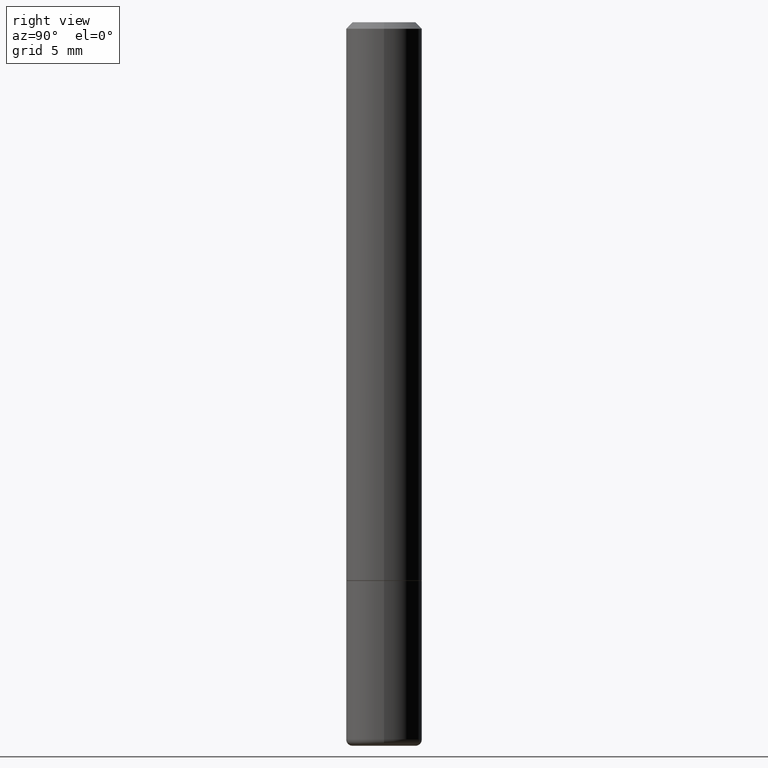
[diagram: clean part render]
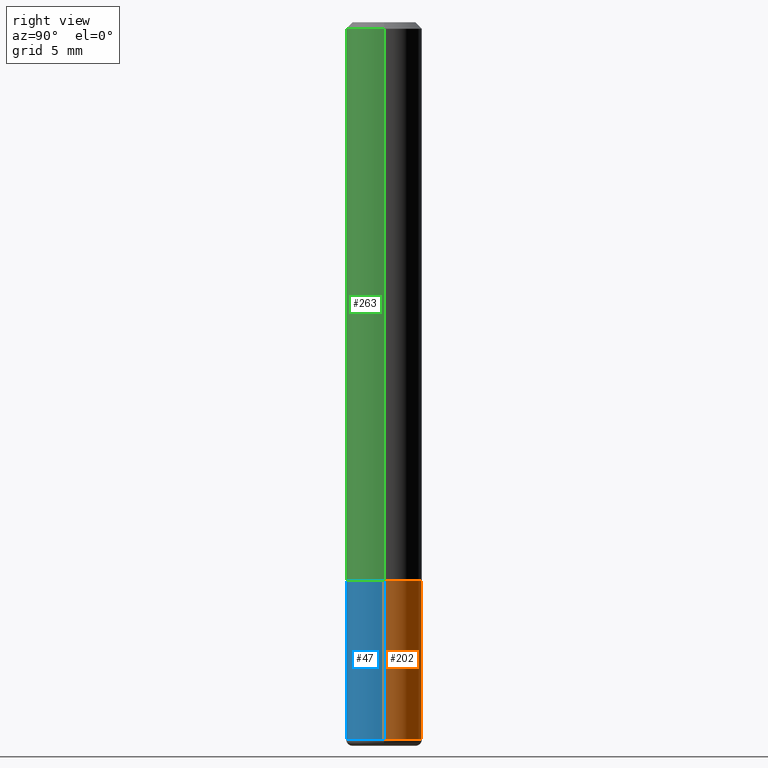
[diagram: same view with three faces highlighted in distinct colors, each labeled with its STEP entity id]
A machine part, right view with three faces highlighted in distinct colors.
Their STEP definitions:

[orange] entity #202 — the highlighted cylindrical surface (partial cylindrical patch) has radius 2.9997 mm, axis along (-0, 0, 1).
#1 = CARTESIAN_POINT ( 'NONE',  ( -0.1180999999999999411, -6.927300119190015324E-15, -2.224399999999999711 ) ) ;
#7 = DIRECTION ( 'NONE',  ( -2.445468806185136597E-29, 3.491481338843145583E-15, 1.000000000000000000 ) ) ;
#8 = AXIS2_PLACEMENT_3D ( 'NONE', #53, #255, #158 ) ;
#16 = ORIENTED_EDGE ( 'NONE', *, *, #373, .F. ) ;
#17 = VERTEX_POINT ( 'NONE', #350 ) ;
#27 = EDGE_CURVE ( 'NONE', #378, #153, #32, .T. ) ;
#32 = CIRCLE ( 'NONE', #8, 0.1180999999999999966 ) ;
#33 = CIRCLE ( 'NONE', #303, 0.1180999999999999966 ) ;
#53 = CARTESIAN_POINT ( 'NONE',  ( 5.439700812478218014E-29, -7.766451090122692732E-15, -2.224399999999999711 ) ) ;
#88 = ORIENTED_EDGE ( 'NONE', *, *, #27, .T. ) ;
#109 = FACE_OUTER_BOUND ( 'NONE', #134, .T. ) ;
#134 = EDGE_LOOP ( 'NONE', ( #88, #175, #217, #16 ) ) ;
#141 = VECTOR ( 'NONE', #310, 39.37007874015748143 ) ;
#143 = VECTOR ( 'NONE', #286, 39.37007874015748143 ) ;
#153 = VERTEX_POINT ( 'NONE', #1 ) ;
#158 = DIRECTION ( 'NONE',  ( 1.000000000000000000, -6.982962677686265133E-15, 0.000000000000000000 ) ) ;
#173 = CARTESIAN_POINT ( 'NONE',  ( 0.000000000000000000, 0.000000000000000000, 0.000000000000000000 ) ) ;
#175 = ORIENTED_EDGE ( 'NONE', *, *, #354, .T. ) ;
#188 = CARTESIAN_POINT ( 'NONE',  ( -0.1180999999999999966, 8.391509709326782957E-16, -5.809262341591043784E-30 ) ) ;
#195 = EDGE_CURVE ( 'NONE', #275, #17, #33, .T. ) ;
#202 = ADVANCED_FACE ( 'NONE', ( #109 ), #235, .T. ) ;
#217 = ORIENTED_EDGE ( 'NONE', *, *, #195, .F. ) ;
#235 = CYLINDRICAL_SURFACE ( 'NONE', #240, 0.1180999999999999966 ) ;
#240 = AXIS2_PLACEMENT_3D ( 'NONE', #173, #270, #243 ) ;
#243 = DIRECTION ( 'NONE',  ( 1.000000000000000000, -6.982962677686266711E-15, 4.876176775795936353E-29 ) ) ;
#251 = CARTESIAN_POINT ( 'NONE',  ( 0.1180999999999999411, -8.591138982357440995E-15, -2.224399999999999711 ) ) ;
#254 = CARTESIAN_POINT ( 'NONE',  ( 0.1180999999999999966, -8.246878922347480654E-16, 5.758764772215000440E-30 ) ) ;
#255 = DIRECTION ( 'NONE',  ( -2.445468806185136597E-29, 3.491481338843145583E-15, 1.000000000000000000 ) ) ;
#268 = DIRECTION ( 'NONE',  ( 1.000000000000000000, -6.982962677686265133E-15, 0.000000000000000000 ) ) ;
#270 = DIRECTION ( 'NONE',  ( -2.445468806185136597E-29, 3.491481338843145583E-15, 1.000000000000000000 ) ) ;
#275 = VERTEX_POINT ( 'NONE', #408 ) ;
#280 = LINE ( 'NONE', #188, #141 ) ;
#286 = DIRECTION ( 'NONE',  ( -2.445468806185136877E-29, 3.491481338843145188E-15, 1.000000000000000000 ) ) ;
#303 = AXIS2_PLACEMENT_3D ( 'NONE', #362, #7, #268 ) ;
#310 = DIRECTION ( 'NONE',  ( -2.445468806185136877E-29, 3.491481338843145188E-15, 1.000000000000000000 ) ) ;
#350 = CARTESIAN_POINT ( 'NONE',  ( -0.1180999999999999966, -6.068221135767658314E-15, -1.732299999999999951 ) ) ;
#354 = EDGE_CURVE ( 'NONE', #153, #17, #280, .T. ) ;
#362 = CARTESIAN_POINT ( 'NONE',  ( 4.236285612954512392E-29, -6.048293123277981078E-15, -1.732299999999999951 ) ) ;
#373 = EDGE_CURVE ( 'NONE', #378, #275, #379, .T. ) ;
#378 = VERTEX_POINT ( 'NONE', #251 ) ;
#379 = LINE ( 'NONE', #254, #143 ) ;
#408 = CARTESIAN_POINT ( 'NONE',  ( 0.1180999999999999966, -6.872981015512729341E-15, -1.732299999999999951 ) ) ;

[blue] entity #47 — the highlighted cylindrical surface (partial cylindrical patch) has radius 2.9997 mm, axis along (-0, 0, 1).
#1 = CARTESIAN_POINT ( 'NONE',  ( -0.1180999999999999411, -6.927300119190015324E-15, -2.224399999999999711 ) ) ;
#17 = VERTEX_POINT ( 'NONE', #350 ) ;
#20 = CARTESIAN_POINT ( 'NONE',  ( 5.439700812478218014E-29, -7.766451090122692732E-15, -2.224399999999999711 ) ) ;
#47 = ADVANCED_FACE ( 'NONE', ( #199 ), #318, .T. ) ;
#65 = DIRECTION ( 'NONE',  ( 1.000000000000000000, -6.982962677686265133E-15, 0.000000000000000000 ) ) ;
#82 = EDGE_CURVE ( 'NONE', #17, #275, #259, .T. ) ;
#84 = ORIENTED_EDGE ( 'NONE', *, *, #354, .F. ) ;
#89 = EDGE_LOOP ( 'NONE', ( #84, #308, #278, #241 ) ) ;
#94 = DIRECTION ( 'NONE',  ( -2.445468806185136597E-29, 3.491481338843145583E-15, 1.000000000000000000 ) ) ;
#102 = DIRECTION ( 'NONE',  ( 1.000000000000000000, -6.982962677686266711E-15, 4.876176775795936353E-29 ) ) ;
#128 = CARTESIAN_POINT ( 'NONE',  ( 0.000000000000000000, 0.000000000000000000, 0.000000000000000000 ) ) ;
#141 = VECTOR ( 'NONE', #310, 39.37007874015748143 ) ;
#143 = VECTOR ( 'NONE', #286, 39.37007874015748143 ) ;
#153 = VERTEX_POINT ( 'NONE', #1 ) ;
#188 = CARTESIAN_POINT ( 'NONE',  ( -0.1180999999999999966, 8.391509709326782957E-16, -5.809262341591043784E-30 ) ) ;
#194 = AXIS2_PLACEMENT_3D ( 'NONE', #128, #281, #102 ) ;
#199 = FACE_OUTER_BOUND ( 'NONE', #89, .T. ) ;
#201 = AXIS2_PLACEMENT_3D ( 'NONE', #226, #353, #287 ) ;
#226 = CARTESIAN_POINT ( 'NONE',  ( 4.236285612954512392E-29, -6.048293123277981078E-15, -1.732299999999999951 ) ) ;
#241 = ORIENTED_EDGE ( 'NONE', *, *, #82, .F. ) ;
#251 = CARTESIAN_POINT ( 'NONE',  ( 0.1180999999999999411, -8.591138982357440995E-15, -2.224399999999999711 ) ) ;
#254 = CARTESIAN_POINT ( 'NONE',  ( 0.1180999999999999966, -8.246878922347480654E-16, 5.758764772215000440E-30 ) ) ;
#259 = CIRCLE ( 'NONE', #201, 0.1180999999999999966 ) ;
#269 = AXIS2_PLACEMENT_3D ( 'NONE', #20, #94, #65 ) ;
#275 = VERTEX_POINT ( 'NONE', #408 ) ;
#278 = ORIENTED_EDGE ( 'NONE', *, *, #373, .T. ) ;
#280 = LINE ( 'NONE', #188, #141 ) ;
#281 = DIRECTION ( 'NONE',  ( -2.445468806185136597E-29, 3.491481338843145583E-15, 1.000000000000000000 ) ) ;
#286 = DIRECTION ( 'NONE',  ( -2.445468806185136877E-29, 3.491481338843145188E-15, 1.000000000000000000 ) ) ;
#287 = DIRECTION ( 'NONE',  ( 1.000000000000000000, -6.982962677686265133E-15, 0.000000000000000000 ) ) ;
#298 = CIRCLE ( 'NONE', #269, 0.1180999999999999966 ) ;
#308 = ORIENTED_EDGE ( 'NONE', *, *, #329, .T. ) ;
#310 = DIRECTION ( 'NONE',  ( -2.445468806185136877E-29, 3.491481338843145188E-15, 1.000000000000000000 ) ) ;
#318 = CYLINDRICAL_SURFACE ( 'NONE', #194, 0.1180999999999999966 ) ;
#329 = EDGE_CURVE ( 'NONE', #153, #378, #298, .T. ) ;
#350 = CARTESIAN_POINT ( 'NONE',  ( -0.1180999999999999966, -6.068221135767658314E-15, -1.732299999999999951 ) ) ;
#353 = DIRECTION ( 'NONE',  ( -2.445468806185136597E-29, 3.491481338843145583E-15, 1.000000000000000000 ) ) ;
#354 = EDGE_CURVE ( 'NONE', #153, #17, #280, .T. ) ;
#373 = EDGE_CURVE ( 'NONE', #378, #275, #379, .T. ) ;
#378 = VERTEX_POINT ( 'NONE', #251 ) ;
#379 = LINE ( 'NONE', #254, #143 ) ;
#408 = CARTESIAN_POINT ( 'NONE',  ( 0.1180999999999999966, -6.872981015512729341E-15, -1.732299999999999951 ) ) ;

[green] entity #263 — the highlighted cylindrical surface (partial cylindrical patch) has radius 2.9997 mm, axis along (-0, 0, 1).
#2 = EDGE_CURVE ( 'NONE', #64, #383, #325, .T. ) ;
#9 = AXIS2_PLACEMENT_3D ( 'NONE', #137, #69, #324 ) ;
#25 = DIRECTION ( 'NONE',  ( 1.000000000000000000, -6.982962677686266711E-15, 4.876176775795935793E-29 ) ) ;
#31 = CARTESIAN_POINT ( 'NONE',  ( -0.1181000000000001215, 8.391509709326791832E-16, -5.809262341591049389E-30 ) ) ;
#44 = EDGE_LOOP ( 'NONE', ( #300, #216, #271, #181 ) ) ;
#48 = AXIS2_PLACEMENT_3D ( 'NONE', #155, #277, #404 ) ;
#49 = AXIS2_PLACEMENT_3D ( 'NONE', #284, #418, #25 ) ;
#55 = CARTESIAN_POINT ( 'NONE',  ( 0.1181000000000001215, -8.246878922347489529E-16, 5.758764772215006046E-30 ) ) ;
#64 = VERTEX_POINT ( 'NONE', #347 ) ;
#69 = DIRECTION ( 'NONE',  ( -2.445468806185136597E-29, 3.491481338843145583E-15, 1.000000000000000000 ) ) ;
#97 = DIRECTION ( 'NONE',  ( -2.445468806185136877E-29, 3.491481338843145188E-15, 1.000000000000000000 ) ) ;
#120 = CARTESIAN_POINT ( 'NONE',  ( -0.1181000000000002048, -2.218164663425318543E-15, -1.731299999999999839 ) ) ;
#125 = EDGE_CURVE ( 'NONE', #208, #344, #151, .T. ) ;
#129 = DIRECTION ( 'NONE',  ( -2.445468806185136877E-29, 3.491481338843145188E-15, 1.000000000000000000 ) ) ;
#137 = CARTESIAN_POINT ( 'NONE',  ( 4.233840144148326789E-29, -6.044801641939137282E-15, -1.731299999999999839 ) ) ;
#151 = CIRCLE ( 'NONE', #9, 0.1181000000000002048 ) ;
#155 = CARTESIAN_POINT ( 'NONE',  ( 4.890937612370288923E-31, -6.982962677686312563E-17, -0.02000000000000006287 ) ) ;
#157 = CYLINDRICAL_SURFACE ( 'NONE', #49, 0.1181000000000001215 ) ;
#181 = ORIENTED_EDGE ( 'NONE', *, *, #2, .F. ) ;
#192 = LINE ( 'NONE', #31, #377 ) ;
#208 = VERTEX_POINT ( 'NONE', #120 ) ;
#216 = ORIENTED_EDGE ( 'NONE', *, *, #125, .T. ) ;
#263 = ADVANCED_FACE ( 'NONE', ( #291 ), #157, .T. ) ;
#271 = ORIENTED_EDGE ( 'NONE', *, *, #342, .T. ) ;
#277 = DIRECTION ( 'NONE',  ( -2.445468806185136597E-29, 3.491481338843145583E-15, 1.000000000000000000 ) ) ;
#284 = CARTESIAN_POINT ( 'NONE',  ( 0.000000000000000000, 0.000000000000000000, 0.000000000000000000 ) ) ;
#291 = FACE_OUTER_BOUND ( 'NONE', #44, .T. ) ;
#300 = ORIENTED_EDGE ( 'NONE', *, *, #393, .F. ) ;
#320 = CARTESIAN_POINT ( 'NONE',  ( 0.1181000000000002048, -6.869489534173887122E-15, -1.731299999999999839 ) ) ;
#324 = DIRECTION ( 'NONE',  ( 1.000000000000000000, -6.982962677686268288E-15, 0.000000000000000000 ) ) ;
#325 = CIRCLE ( 'NONE', #48, 0.1181000000000000383 ) ;
#326 = VECTOR ( 'NONE', #129, 39.37007874015748143 ) ;
#342 = EDGE_CURVE ( 'NONE', #344, #383, #385, .T. ) ;
#344 = VERTEX_POINT ( 'NONE', #320 ) ;
#346 = CARTESIAN_POINT ( 'NONE',  ( 0.1181000000000000383, -8.800544403136812319E-16, -0.02000000000000006287 ) ) ;
#347 = CARTESIAN_POINT ( 'NONE',  ( -0.1181000000000000383, 7.548582654578852602E-16, -0.02000000000000006287 ) ) ;
#377 = VECTOR ( 'NONE', #97, 39.37007874015748143 ) ;
#383 = VERTEX_POINT ( 'NONE', #346 ) ;
#385 = LINE ( 'NONE', #55, #326 ) ;
#393 = EDGE_CURVE ( 'NONE', #208, #64, #192, .T. ) ;
#404 = DIRECTION ( 'NONE',  ( 1.000000000000000000, -6.982962677686266711E-15, 0.000000000000000000 ) ) ;
#418 = DIRECTION ( 'NONE',  ( -2.445468806185136597E-29, 3.491481338843145583E-15, 1.000000000000000000 ) ) ;